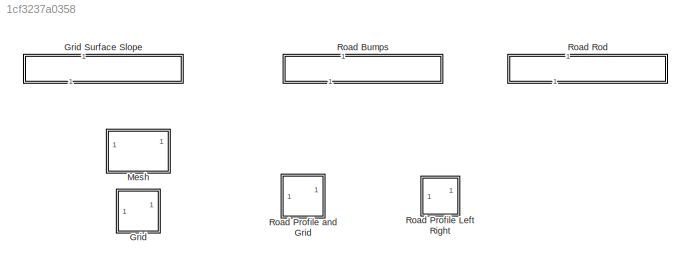
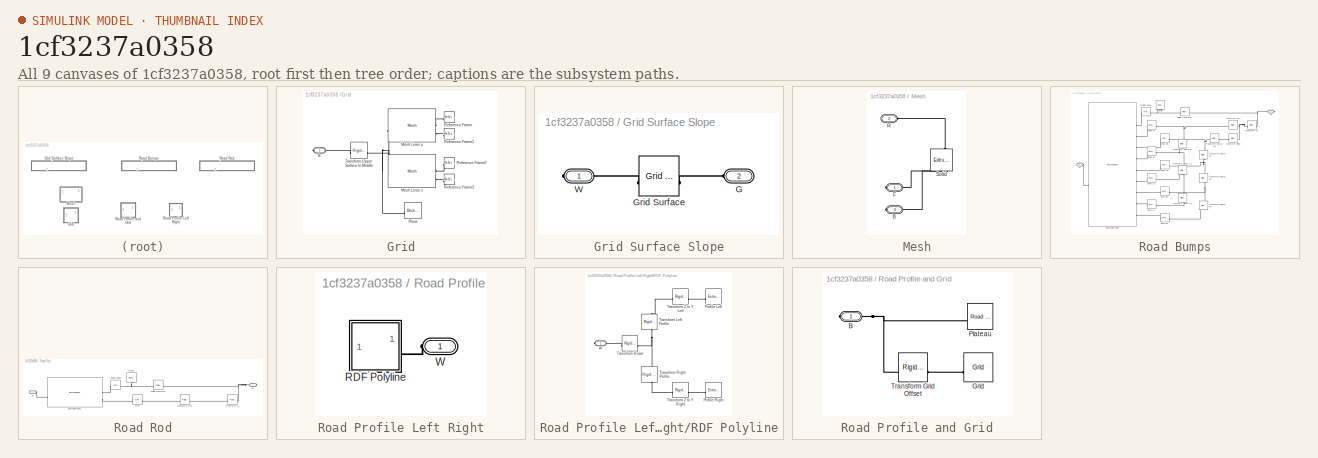
[diagram: thumbnail index - all 9 canvases of the model, root first then tree order]
MODEL slx_1cf3237a0358
KIND library
CONFIG SolverName = VariableStepAuto
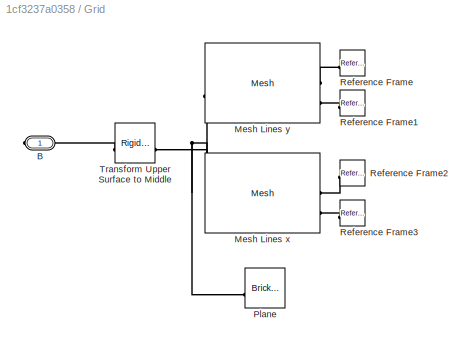
BLOCK [SubSystem] Grid
  VariantControl = Grid
BLOCK [SubSystem] Grid Surface Slope
  NameLocation = right
BLOCK [PMIOPort] Grid Surface Slope/G
  Port = 2
  Side = Left
BLOCK [Reference] Grid Surface Slope/Grid Surface  REF=sm_lib/Curves and Surfaces/Grid Surface
  SourceBlock = sm_lib/Curves and Surfaces/Grid Surface
  SourceType = Grid Surface
BLOCK [PMIOPort] Grid Surface Slope/W
  Side = Right
BLOCK [PMIOPort] Grid/B
  Side = Right
BLOCK [Reference] Grid/Mesh Lines x  REF=$bdroot/Mesh
  SourceBlock = $bdroot/Mesh
  SourceType = Rectangular Mesh
BLOCK [Reference] Grid/Mesh Lines y   REF=$bdroot/Mesh
  SourceBlock = $bdroot/Mesh
  SourceType = Rectangular Mesh
BLOCK [Reference] Grid/Plane  REF=sm_lib/Body Elements/Brick Solid
  SourceBlock = sm_lib/Body Elements/Brick Solid
  SourceType = Brick Solid
BLOCK [Reference] Grid/Reference Frame  REF=sm_lib/Frames and
Transforms/Reference
Frame
  NameLocation = top
  SourceBlock = sm_lib/Frames and\nTransforms/Reference\nFrame
  SourceType = Reference\nFrame
BLOCK [Reference] Grid/Reference Frame1  REF=sm_lib/Frames and
Transforms/Reference
Frame
  NameLocation = top
  SourceBlock = sm_lib/Frames and\nTransforms/Reference\nFrame
  SourceType = Reference\nFrame
BLOCK [Reference] Grid/Reference Frame2  REF=sm_lib/Frames and
Transforms/Reference
Frame
  NameLocation = top
  SourceBlock = sm_lib/Frames and\nTransforms/Reference\nFrame
  SourceType = Reference\nFrame
BLOCK [Reference] Grid/Reference Frame3  REF=sm_lib/Frames and
Transforms/Reference
Frame
  SourceBlock = sm_lib/Frames and\nTransforms/Reference\nFrame
  SourceType = Reference\nFrame
BLOCK [Reference] Grid/Transform Upper Surface to Middle  REF=sm_lib/Frames and
Transforms/Rigid
Transform
  SourceBlock = sm_lib/Frames and\nTransforms/Rigid\nTransform
  SourceType = Rigid\nTransform
BLOCK [SubSystem] Mesh
BLOCK [PMIOPort] Mesh/B
  Port = 3
  Side = Right
BLOCK [PMIOPort] Mesh/F
  Side = Right
BLOCK [PMIOPort] Mesh/R
  Port = 2
  Side = Left
BLOCK [Reference] Mesh/Solid  REF=sm_lib/Body Elements/Extruded Solid
  NameLocation = right
  SourceBlock = sm_lib/Body Elements/Extruded Solid
  SourceType = Extruded Solid
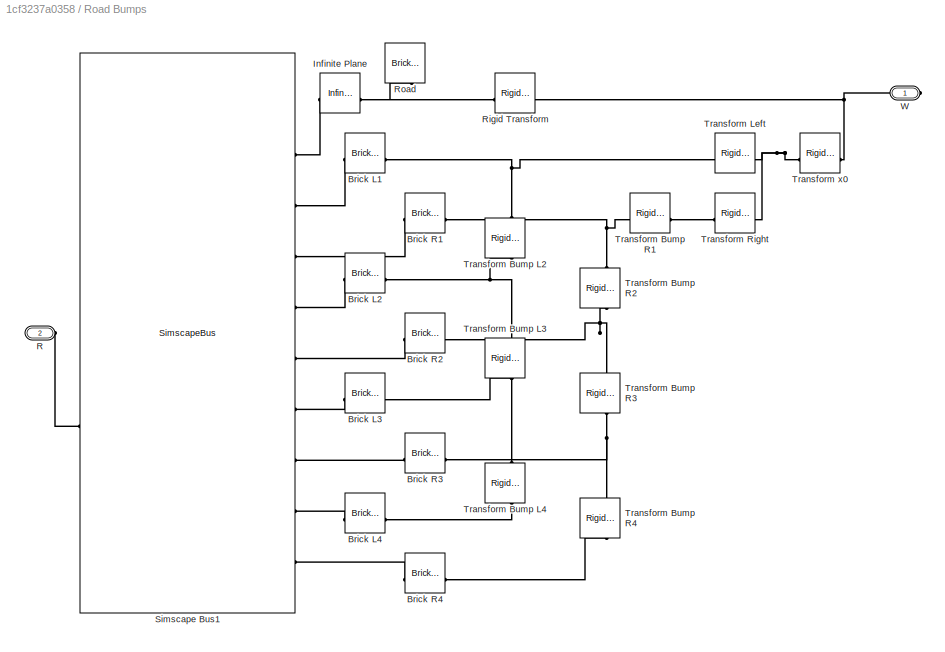
BLOCK [SubSystem] Road Bumps
  NameLocation = right
BLOCK [Reference] Road Bumps/Brick L1  REF=sm_lib/Body Elements/Brick Solid
  SourceBlock = sm_lib/Body Elements/Brick Solid
  SourceType = Brick Solid
BLOCK [Reference] Road Bumps/Brick L2  REF=sm_lib/Body Elements/Brick Solid
  SourceBlock = sm_lib/Body Elements/Brick Solid
  SourceType = Brick Solid
BLOCK [Reference] Road Bumps/Brick L3  REF=sm_lib/Body Elements/Brick Solid
  SourceBlock = sm_lib/Body Elements/Brick Solid
  SourceType = Brick Solid
BLOCK [Reference] Road Bumps/Brick L4  REF=sm_lib/Body Elements/Brick Solid
  SourceBlock = sm_lib/Body Elements/Brick Solid
  SourceType = Brick Solid
BLOCK [Reference] Road Bumps/Brick R1  REF=sm_lib/Body Elements/Brick Solid
  SourceBlock = sm_lib/Body Elements/Brick Solid
  SourceType = Brick Solid
BLOCK [Reference] Road Bumps/Brick R2  REF=sm_lib/Body Elements/Brick Solid
  SourceBlock = sm_lib/Body Elements/Brick Solid
  SourceType = Brick Solid
BLOCK [Reference] Road Bumps/Brick R3  REF=sm_lib/Body Elements/Brick Solid
  SourceBlock = sm_lib/Body Elements/Brick Solid
  SourceType = Brick Solid
BLOCK [Reference] Road Bumps/Brick R4  REF=sm_lib/Body Elements/Brick Solid
  SourceBlock = sm_lib/Body Elements/Brick Solid
  SourceType = Brick Solid
BLOCK [Reference] Road Bumps/Infinite Plane  REF=sm_lib/Curves and Surfaces/Infinite Plane
  NameLocation = top
  SourceBlock = sm_lib/Curves and Surfaces/Infinite Plane
  SourceType = Infinite Plane
BLOCK [PMIOPort] Road Bumps/R
  NameLocation = top
  Port = 2
  Side = Left
BLOCK [Reference] Road Bumps/Rigid Transform  REF=sm_lib/Frames and
Transforms/Rigid
Transform
  SourceBlock = sm_lib/Frames and\nTransforms/Rigid\nTransform
  SourceType = Rigid\nTransform
BLOCK [Reference] Road Bumps/Road  REF=sm_lib/Body Elements/Brick Solid
  NameLocation = right
  SourceBlock = sm_lib/Body Elements/Brick Solid
  SourceType = Brick Solid
BLOCK [SimscapeBus] Road Bumps/Simscape Bus1
  ConnectionType = Bus: CBO_Road8
  HierarchyStrings = Road;B1;B2;B3;B4;B5;B6;B7;B8
  NameLocation = top
BLOCK [Reference] Road Bumps/Transform Bump L2  REF=sm_lib/Frames and
Transforms/Rigid
Transform
  NameLocation = right
  SourceBlock = sm_lib/Frames and\nTransforms/Rigid\nTransform
  SourceType = Rigid\nTransform
BLOCK [Reference] Road Bumps/Transform Bump L3  REF=sm_lib/Frames and
Transforms/Rigid
Transform
  NameLocation = right
  SourceBlock = sm_lib/Frames and\nTransforms/Rigid\nTransform
  SourceType = Rigid\nTransform
BLOCK [Reference] Road Bumps/Transform Bump L4  REF=sm_lib/Frames and
Transforms/Rigid
Transform
  NameLocation = right
  SourceBlock = sm_lib/Frames and\nTransforms/Rigid\nTransform
  SourceType = Rigid\nTransform
BLOCK [Reference] Road Bumps/Transform Bump R1  REF=sm_lib/Frames and
Transforms/Rigid
Transform
  SourceBlock = sm_lib/Frames and\nTransforms/Rigid\nTransform
  SourceType = Rigid\nTransform
BLOCK [Reference] Road Bumps/Transform Bump R2  REF=sm_lib/Frames and
Transforms/Rigid
Transform
  NameLocation = right
  SourceBlock = sm_lib/Frames and\nTransforms/Rigid\nTransform
  SourceType = Rigid\nTransform
BLOCK [Reference] Road Bumps/Transform Bump R3  REF=sm_lib/Frames and
Transforms/Rigid
Transform
  NameLocation = right
  SourceBlock = sm_lib/Frames and\nTransforms/Rigid\nTransform
  SourceType = Rigid\nTransform
BLOCK [Reference] Road Bumps/Transform Bump R4  REF=sm_lib/Frames and
Transforms/Rigid
Transform
  NameLocation = right
  SourceBlock = sm_lib/Frames and\nTransforms/Rigid\nTransform
  SourceType = Rigid\nTransform
BLOCK [Reference] Road Bumps/Transform Left  REF=sm_lib/Frames and
Transforms/Rigid
Transform
  SourceBlock = sm_lib/Frames and\nTransforms/Rigid\nTransform
  SourceType = Rigid\nTransform
BLOCK [Reference] Road Bumps/Transform Right  REF=sm_lib/Frames and
Transforms/Rigid
Transform
  SourceBlock = sm_lib/Frames and\nTransforms/Rigid\nTransform
  SourceType = Rigid\nTransform
BLOCK [Reference] Road Bumps/Transform x0  REF=sm_lib/Frames and
Transforms/Rigid
Transform
  SourceBlock = sm_lib/Frames and\nTransforms/Rigid\nTransform
  SourceType = Rigid\nTransform
BLOCK [PMIOPort] Road Bumps/W
  Side = Right
BLOCK [SubSystem] Road Profile Left Right
BLOCK [SubSystem] Road Profile Left Right/RDF Polyline
BLOCK [Reference] Road Profile Left Right/RDF Polyline/Profile Left  REF=sm_lib/Body Elements/Extruded Solid
  SourceBlock = sm_lib/Body Elements/Extruded Solid
  SourceType = Extruded Solid
BLOCK [Reference] Road Profile Left Right/RDF Polyline/Profile Right  REF=sm_lib/Body Elements/Extruded Solid
  SourceBlock = sm_lib/Body Elements/Extruded Solid
  SourceType = Extruded Solid
BLOCK [Reference] Road Profile Left Right/RDF Polyline/Transform Left Profile  REF=sm_lib/Frames and
Transforms/Rigid
Transform
  NameLocation = right
  SourceBlock = sm_lib/Frames and\nTransforms/Rigid\nTransform
  SourceType = Rigid\nTransform
BLOCK [Reference] Road Profile Left Right/RDF Polyline/Transform Right Profile  REF=sm_lib/Frames and
Transforms/Rigid
Transform
  NameLocation = left
  SourceBlock = sm_lib/Frames and\nTransforms/Rigid\nTransform
  SourceType = Rigid\nTransform
BLOCK [Reference] Road Profile Left Right/RDF Polyline/Transform Road  REF=sm_lib/Frames and
Transforms/Rigid
Transform
  SourceBlock = sm_lib/Frames and\nTransforms/Rigid\nTransform
  SourceType = Rigid\nTransform
BLOCK [Reference] Road Profile Left Right/RDF Polyline/Transform Z to Y Left  REF=sm_lib/Frames and
Transforms/Rigid
Transform
  SourceBlock = sm_lib/Frames and\nTransforms/Rigid\nTransform
  SourceType = Rigid\nTransform
BLOCK [Reference] Road Profile Left Right/RDF Polyline/Transform Z to Y Right  REF=sm_lib/Frames and
Transforms/Rigid
Transform
  SourceBlock = sm_lib/Frames and\nTransforms/Rigid\nTransform
  SourceType = Rigid\nTransform
BLOCK [PMIOPort] Road Profile Left Right/RDF Polyline/W
  Side = Right
BLOCK [PMIOPort] Road Profile Left Right/W
  NameLocation = top
  Side = Left
BLOCK [SubSystem] Road Profile and Grid
  VariantControl = Plateau
BLOCK [PMIOPort] Road Profile and Grid/B
  Side = Right
BLOCK [Reference] Road Profile and Grid/Grid  REF=$bdroot/Grid
  SourceBlock = $bdroot/Grid
  SourceType = Grid
BLOCK [Reference] Road Profile and Grid/Plateau  REF=$bdroot/Road Profile Left Right
  LibrarySourceBlock = sm_excv_uneven_road_lib/Scene Plateau
  SourceBlock = $bdroot/Road Profile Left Right
  SourceType = Left and Right Paths for Wheels.
BLOCK [Reference] Road Profile and Grid/Transform Grid Offset  REF=sm_lib/Frames and
Transforms/Rigid
Transform
  SourceBlock = sm_lib/Frames and\nTransforms/Rigid\nTransform
  SourceType = Rigid\nTransform
BLOCK [SubSystem] Road Rod
  NameLocation = right
BLOCK [Reference] Road Rod/Infinite Plane  REF=sm_lib/Curves and Surfaces/Infinite Plane
  NameLocation = top
  SourceBlock = sm_lib/Curves and Surfaces/Infinite Plane
  SourceType = Infinite Plane
BLOCK [PMIOPort] Road Rod/R
  NameLocation = top
  Port = 2
  Side = Left
BLOCK [Reference] Road Rod/Rigid Transform  REF=sm_lib/Frames and
Transforms/Rigid
Transform
  SourceBlock = sm_lib/Frames and\nTransforms/Rigid\nTransform
  SourceType = Rigid\nTransform
BLOCK [Reference] Road Rod/Road  REF=sm_lib/Body Elements/Brick Solid
  NameLocation = right
  SourceBlock = sm_lib/Body Elements/Brick Solid
  SourceType = Brick Solid
BLOCK [Reference] Road Rod/Rod  REF=sm_lib/Body Elements/Cylindrical Solid
  SourceBlock = sm_lib/Body Elements/Cylindrical Solid
  SourceType = Cylindrical Solid
BLOCK [SimscapeBus] Road Rod/Simscape Bus1
  ConnectionType = Bus: CBO_Road8
  HierarchyStrings = Road;B1
  NameLocation = top
BLOCK [Reference] Road Rod/Transform Rod  REF=sm_lib/Frames and
Transforms/Rigid
Transform
  SourceBlock = sm_lib/Frames and\nTransforms/Rigid\nTransform
  SourceType = Rigid\nTransform
BLOCK [Reference] Road Rod/Transform x0  REF=sm_lib/Frames and
Transforms/Rigid
Transform
  SourceBlock = sm_lib/Frames and\nTransforms/Rigid\nTransform
  SourceType = Rigid\nTransform
BLOCK [PMIOPort] Road Rod/W
  Side = Right
PLINE Grid Surface Slope/G:RConn1 -- Grid Surface Slope/Grid Surface:RConn1
PLINE Grid Surface Slope/Grid Surface:LConn1 -- Grid Surface Slope/W:RConn1
PLINE Grid/B:RConn1 -- Grid/Transform Upper Surface to Middle:LConn1
PNET net1: Grid/Mesh Lines x:LConn1 -- Grid/Mesh Lines y :LConn1 -- Grid/Plane:RConn1 -- Grid/Transform Upper Surface to Middle:RConn1
PLINE Grid/Mesh Lines x:RConn1 -- Grid/Reference Frame2:RConn1
PLINE Grid/Mesh Lines x:RConn2 -- Grid/Reference Frame3:RConn1
PLINE Grid/Mesh Lines y :RConn1 -- Grid/Reference Frame:RConn1
PLINE Grid/Mesh Lines y :RConn2 -- Grid/Reference Frame1:RConn1
PLINE Mesh/B:RConn1 -- Mesh/Solid:LConn2
PLINE Mesh/F:RConn1 -- Mesh/Solid:LConn1
PLINE Mesh/R:RConn1 -- Mesh/Solid:RConn1
PNET net2: Road Bumps/Brick L1:LConn1 -- Road Bumps/Transform Bump L2:LConn1 -- Road Bumps/Transform Left:RConn1
PLINE Road Bumps/Brick L1:RConn1 -- Road Bumps/Simscape Bus1:LConn2
PNET net3: Road Bumps/Brick L2:LConn1 -- Road Bumps/Transform Bump L2:RConn1 -- Road Bumps/Transform Bump L3:LConn1
PLINE Road Bumps/Brick L2:RConn1 -- Road Bumps/Simscape Bus1:LConn4
PNET net4: Road Bumps/Brick L3:LConn1 -- Road Bumps/Transform Bump L3:RConn1 -- Road Bumps/Transform Bump L4:LConn1
PLINE Road Bumps/Brick L3:RConn1 -- Road Bumps/Simscape Bus1:LConn6
PLINE Road Bumps/Brick L4:LConn1 -- Road Bumps/Transform Bump L4:RConn1
PLINE Road Bumps/Brick L4:RConn1 -- Road Bumps/Simscape Bus1:LConn8
PNET net5: Road Bumps/Brick R1:LConn1 -- Road Bumps/Transform Bump R1:RConn1 -- Road Bumps/Transform Bump R2:LConn1
PLINE Road Bumps/Brick R1:RConn1 -- Road Bumps/Simscape Bus1:LConn3
PNET net6: Road Bumps/Brick R2:LConn1 -- Road Bumps/Transform Bump R2:RConn1 -- Road Bumps/Transform Bump R3:LConn1
PLINE Road Bumps/Brick R2:RConn1 -- Road Bumps/Simscape Bus1:LConn5
PNET net7: Road Bumps/Brick R3:LConn1 -- Road Bumps/Transform Bump R3:RConn1 -- Road Bumps/Transform Bump R4:LConn1
PLINE Road Bumps/Brick R3:RConn1 -- Road Bumps/Simscape Bus1:LConn7
PLINE Road Bumps/Brick R4:LConn1 -- Road Bumps/Transform Bump R4:RConn1
PLINE Road Bumps/Brick R4:RConn1 -- Road Bumps/Simscape Bus1:LConn9
PNET net8: Road Bumps/Infinite Plane:LConn1 -- Road Bumps/Rigid Transform:RConn1 -- Road Bumps/Road:LConn1
PLINE Road Bumps/Infinite Plane:RConn1 -- Road Bumps/Simscape Bus1:LConn1
PLINE Road Bumps/R:RConn1 -- Road Bumps/Simscape Bus1:RConn1
PNET net9: Road Bumps/Rigid Transform:LConn1 -- Road Bumps/Transform x0:LConn1 -- Road Bumps/W:RConn1
PLINE Road Bumps/Transform Bump R1:LConn1 -- Road Bumps/Transform Right:RConn1
PNET net10: Road Bumps/Transform Left:LConn1 -- Road Bumps/Transform Right:LConn1 -- Road Bumps/Transform x0:RConn1
PLINE Road Profile Left Right/RDF Polyline/Profile Left:RConn1 -- Road Profile Left Right/RDF Polyline/Transform Z to Y Left:RConn1
PLINE Road Profile Left Right/RDF Polyline/Profile Right:RConn1 -- Road Profile Left Right/RDF Polyline/Transform Z to Y Right:RConn1
PNET net11: Road Profile Left Right/RDF Polyline/Transform Left Profile:LConn1 -- Road Profile Left Right/RDF Polyline/Transform Right Profile:LConn1 -- Road Profile Left Right/RDF Polyline/Transform Road:RConn1
PLINE Road Profile Left Right/RDF Polyline/Transform Left Profile:RConn1 -- Road Profile Left Right/RDF Polyline/Transform Z to Y Left:LConn1
PLINE Road Profile Left Right/RDF Polyline/Transform Right Profile:RConn1 -- Road Profile Left Right/RDF Polyline/Transform Z to Y Right:LConn1
PLINE Road Profile Left Right/RDF Polyline/Transform Road:LConn1 -- Road Profile Left Right/RDF Polyline/W:RConn1
PLINE Road Profile Left Right/RDF Polyline:RConn1 -- Road Profile Left Right/W:RConn1
PNET net12: Road Profile and Grid/B:RConn1 -- Road Profile and Grid/Plateau:LConn1 -- Road Profile and Grid/Transform Grid Offset:LConn1
PLINE Road Profile and Grid/Grid:RConn1 -- Road Profile and Grid/Transform Grid Offset:RConn1
PNET net13: Road Rod/Infinite Plane:LConn1 -- Road Rod/Rigid Transform:RConn1 -- Road Rod/Road:LConn1
PLINE Road Rod/Infinite Plane:RConn1 -- Road Rod/Simscape Bus1:LConn1
PLINE Road Rod/R:RConn1 -- Road Rod/Simscape Bus1:RConn1
PNET net14: Road Rod/Rigid Transform:LConn1 -- Road Rod/Transform x0:LConn1 -- Road Rod/W:RConn1
PLINE Road Rod/Rod:LConn1 -- Road Rod/Simscape Bus1:LConn2
PLINE Road Rod/Rod:RConn1 -- Road Rod/Transform Rod:RConn1
PLINE Road Rod/Transform Rod:LConn1 -- Road Rod/Transform x0:RConn1
note: PNET lines group multi-terminal physical nets as a canonical sorted terminal list (undirected conserving connections); 2-terminal nets keep the pairwise PLINE form
